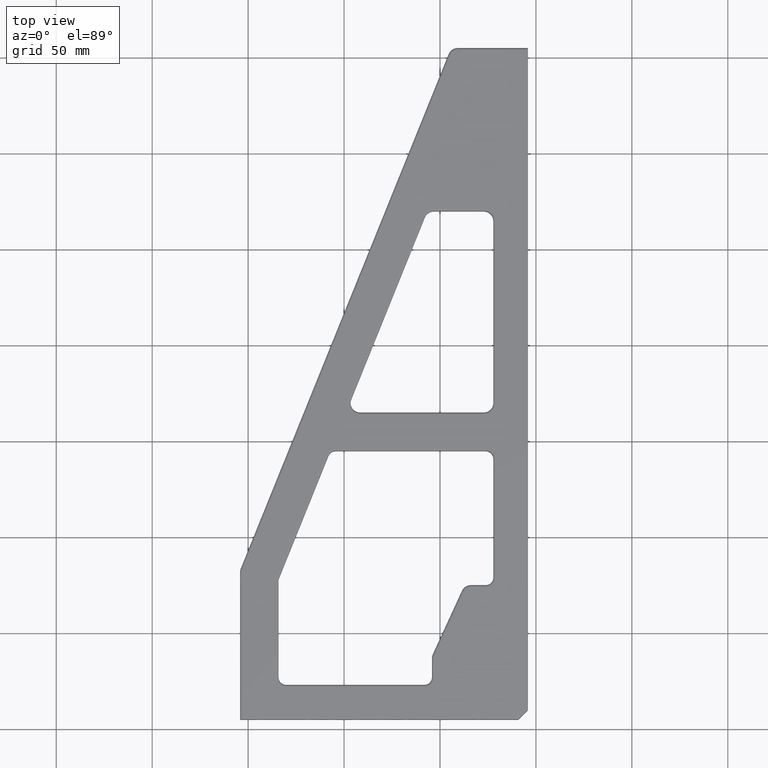
[diagram: clean part render]
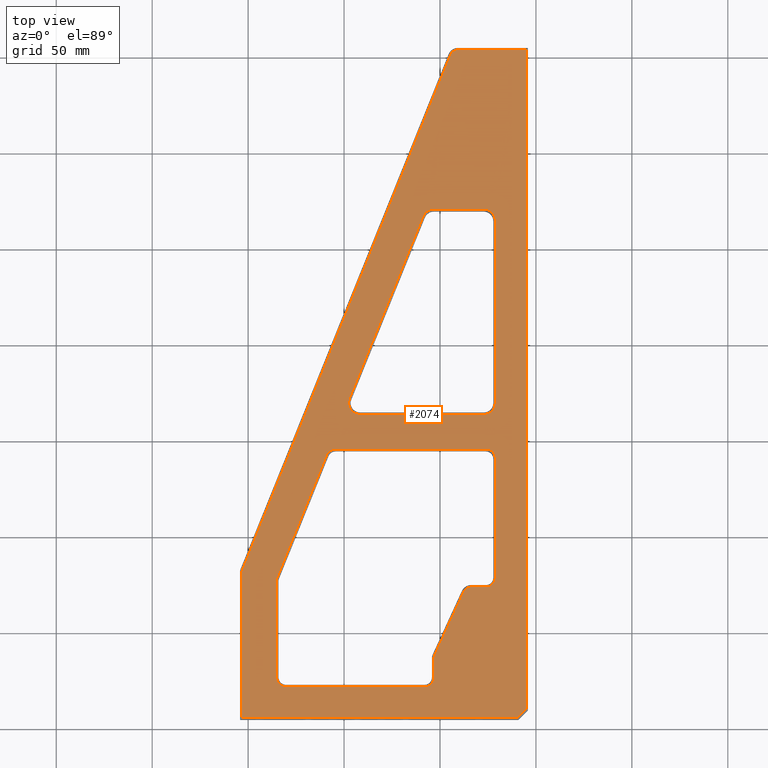
[diagram: same view with one face highlighted and labeled with its STEP entity id]
A machine part, top view. The second image highlights one B-rep face of the part: STEP entity #2074.
In plain terms, the highlighted planar face has unit normal (0, 0, 1).
Its self-contained STEP definition (entity closure, byte-faithful):
#43 = CARTESIAN_POINT ( 'NONE',  ( 149.0000000000000000, 349.0000000000000000, 18.00000000000001400 ) ) ;
#44 = VECTOR ( 'NONE', #501, 1000.000000000000000 ) ;
#126 = EDGE_LOOP ( 'NONE', ( #5158, #3709, #1518, #5282, #1788, #5271, #2563, #5388, #1693, #2848, #5164, #4186, #2312, #811, #1691, #3059 ) ) ;
#150 = VERTEX_POINT ( 'NONE', #197 ) ;
#156 = VERTEX_POINT ( 'NONE', #1038 ) ;
#197 = CARTESIAN_POINT ( 'NONE',  ( 19.36408072716605800, 74.09551173052867100, 18.00000000000001400 ) ) ;
#230 = VERTEX_POINT ( 'NONE', #3561 ) ;
#232 = DIRECTION ( 'NONE',  ( 1.000000000000000000, 0.0000000000000000000, 0.0000000000000000000 ) ) ;
#241 = DIRECTION ( 'NONE',  ( -1.000000000000000000, 3.611669139550354700E-016, -0.0000000000000000000 ) ) ;
#257 = EDGE_CURVE ( 'NONE', #2310, #3793, #4108, .T. ) ;
#278 = DIRECTION ( 'NONE',  ( -1.000000000000000000, -8.673617379884035500E-017, -0.0000000000000000000 ) ) ;
#288 = CIRCLE ( 'NONE', #2963, 4.000000000000003600 ) ;
#356 = CARTESIAN_POINT ( 'NONE',  ( 18.99999999999999300, 22.00000000000000700, 18.00000000000001400 ) ) ;
#468 = VERTEX_POINT ( 'NONE', #1799 ) ;
#472 = EDGE_CURVE ( 'NONE', #2379, #2310, #4510, .T. ) ;
#487 = CARTESIAN_POINT ( 'NONE',  ( 0.0000000000000000000, 0.0000000000000000000, 18.00000000000001400 ) ) ;
#501 = DIRECTION ( 'NONE',  ( 1.261617073437678500E-016, 1.000000000000000000, -0.0000000000000000000 ) ) ;
#556 = LINE ( 'NONE', #621, #2863 ) ;
#570 = CARTESIAN_POINT ( 'NONE',  ( 100.9455779445615500, 266.0000000000000000, 18.00000000000001400 ) ) ;
#584 = CARTESIAN_POINT ( 'NONE',  ( 95.38247481716084100, 262.2476395604954900, 18.00000000000001400 ) ) ;
#592 = CARTESIAN_POINT ( 'NONE',  ( 62.56308649022202000, 165.0000000000000000, 18.00000000000001400 ) ) ;
#605 = CIRCLE ( 'NONE', #2345, 4.999999999999997300 ) ;
#613 = LINE ( 'NONE', #4608, #4957 ) ;
#621 = CARTESIAN_POINT ( 'NONE',  ( 128.0000000000000000, 141.0000000000000000, 18.00000000000001400 ) ) ;
#635 = DIRECTION ( 'NONE',  ( -0.0000000000000000000, 0.0000000000000000000, 1.000000000000000000 ) ) ;
#645 = DIRECTION ( 'NONE',  ( 0.0000000000000000000, -0.0000000000000000000, -1.000000000000000000 ) ) ;
#651 = CARTESIAN_POINT ( 'NONE',  ( 23.99999999999999300, 22.00000000000000700, 18.00000000000001400 ) ) ;
#666 = CARTESIAN_POINT ( 'NONE',  ( 133.0000000000000000, 74.00000000000001400, 18.00000000000001400 ) ) ;
#759 = DIRECTION ( 'NONE',  ( -0.0000000000000000000, 0.0000000000000000000, 1.000000000000000000 ) ) ;
#790 = EDGE_CURVE ( 'NONE', #468, #1547, #5467, .T. ) ;
#811 = ORIENTED_EDGE ( 'NONE', *, *, #3150, .T. ) ;
#827 = CARTESIAN_POINT ( 'NONE',  ( 149.0000000000000000, 350.0000000000000000, 18.00000000000001400 ) ) ;
#835 = AXIS2_PLACEMENT_3D ( 'NONE', #1302, #4338, #1746 ) ;
#847 = CARTESIAN_POINT ( 'NONE',  ( 127.0000000000000000, 260.0000000000000000, 18.00000000000001400 ) ) ;
#919 = VECTOR ( 'NONE', #1103, 1000.000000000000000 ) ;
#940 = CIRCLE ( 'NONE', #3570, 5.000000000000004400 ) ;
#941 = ORIENTED_EDGE ( 'NONE', *, *, #1252, .T. ) ;
#946 = ORIENTED_EDGE ( 'NONE', *, *, #3347, .T. ) ;
#1020 = CARTESIAN_POINT ( 'NONE',  ( 23.99999999999999300, 17.00000000000000000, 18.00000000000001400 ) ) ;
#1025 = DIRECTION ( 'NONE',  ( 1.000000000000000000, 0.0000000000000000000, 0.0000000000000000000 ) ) ;
#1038 = CARTESIAN_POINT ( 'NONE',  ( 18.99999999999999600, 72.22247876344911800, 18.00000000000001400 ) ) ;
#1083 = DIRECTION ( 'NONE',  ( 0.0000000000000000000, -0.0000000000000000000, -1.000000000000000000 ) ) ;
#1096 = DIRECTION ( 'NONE',  ( 1.000000000000000000, 0.0000000000000000000, 0.0000000000000000000 ) ) ;
#1103 = DIRECTION ( 'NONE',  ( 2.643388153869419300E-016, -1.000000000000000000, 0.0000000000000000000 ) ) ;
#1109 = CARTESIAN_POINT ( 'NONE',  ( 1.000000000000000000, 0.0000000000000000000, 18.00000000000001400 ) ) ;
#1132 = CARTESIAN_POINT ( 'NONE',  ( 133.0000000000000300, 164.9999999999999700, 18.00000000000001400 ) ) ;
#1153 = DIRECTION ( 'NONE',  ( -0.4175001715507113400, -0.9086768439633127200, -0.0000000000000000000 ) ) ;
#1182 = AXIS2_PLACEMENT_3D ( 'NONE', #651, #3683, #1096 ) ;
#1183 = DIRECTION ( 'NONE',  ( 0.0000000000000000000, -0.0000000000000000000, -1.000000000000000000 ) ) ;
#1209 = VERTEX_POINT ( 'NONE', #5462 ) ;
#1252 = EDGE_CURVE ( 'NONE', #3439, #230, #3670, .T. ) ;
#1268 = CARTESIAN_POINT ( 'NONE',  ( 127.0000000000000000, 266.0000000000000000, 18.00000000000001400 ) ) ;
#1277 = DIRECTION ( 'NONE',  ( 1.000000000000000000, 0.0000000000000000000, 0.0000000000000000000 ) ) ;
#1286 = ORIENTED_EDGE ( 'NONE', *, *, #3197, .T. ) ;
#1302 = CARTESIAN_POINT ( 'NONE',  ( 127.0000000000000300, 164.9999999999999700, 18.00000000000001400 ) ) ;
#1339 = VECTOR ( 'NONE', #3175, 1000.000000000000000 ) ;
#1353 = EDGE_CURVE ( 'NONE', #3035, #2903, #4425, .T. ) ;
#1367 = VERTEX_POINT ( 'NONE', #43 ) ;
#1399 = DIRECTION ( 'NONE',  ( 0.3746065934159091800, 0.9271838545667885300, -0.0000000000000000000 ) ) ;
#1418 = VERTEX_POINT ( 'NONE', #3496 ) ;
#1459 = CARTESIAN_POINT ( 'NONE',  ( 56.99998336282128300, 167.2476395604954600, 18.00000000000001400 ) ) ;
#1461 = EDGE_CURVE ( 'NONE', #5114, #2133, #556, .T. ) ;
#1485 = AXIS2_PLACEMENT_3D ( 'NONE', #4579, #1984, #5021 ) ;
#1518 = ORIENTED_EDGE ( 'NONE', *, *, #2493, .T. ) ;
#1529 = EDGE_CURVE ( 'NONE', #4699, #3302, #4769, .T. ) ;
#1540 = DIRECTION ( 'NONE',  ( 1.000000000000000000, -0.0000000000000000000, 0.0000000000000000000 ) ) ;
#1547 = VERTEX_POINT ( 'NONE', #4125 ) ;
#1552 = CARTESIAN_POINT ( 'NONE',  ( 1.291264581732830500, 78.26697095218024500, 18.00000000000001400 ) ) ;
#1573 = EDGE_CURVE ( 'NONE', #1418, #3777, #4073, .T. ) ;
#1582 = DIRECTION ( 'NONE',  ( 0.7071067811865474600, 0.7071067811865474600, -0.0000000000000000000 ) ) ;
#1595 = DIRECTION ( 'NONE',  ( -0.0000000000000000000, 0.0000000000000000000, 1.000000000000000000 ) ) ;
#1596 = EDGE_CURVE ( 'NONE', #4651, #2273, #613, .T. ) ;
#1598 = LINE ( 'NONE', #827, #3891 ) ;
#1628 = EDGE_CURVE ( 'NONE', #1547, #1858, #2524, .T. ) ;
#1636 = LINE ( 'NONE', #4772, #2760 ) ;
#1682 = DIRECTION ( 'NONE',  ( 0.0000000000000000000, 1.000000000000000000, -0.0000000000000000000 ) ) ;
#1691 = ORIENTED_EDGE ( 'NONE', *, *, #3187, .T. ) ;
#1693 = ORIENTED_EDGE ( 'NONE', *, *, #4436, .T. ) ;
#1720 = EDGE_CURVE ( 'NONE', #3793, #1209, #1977, .T. ) ;
#1737 = VECTOR ( 'NONE', #5532, 1000.000000000000000 ) ;
#1740 = AXIS2_PLACEMENT_3D ( 'NONE', #487, #4823, #2220 ) ;
#1746 = DIRECTION ( 'NONE',  ( 1.000000000000000000, 0.0000000000000000000, 0.0000000000000000000 ) ) ;
#1754 = LINE ( 'NONE', #4416, #1877 ) ;
#1788 = ORIENTED_EDGE ( 'NONE', *, *, #1573, .T. ) ;
#1796 = AXIS2_PLACEMENT_3D ( 'NONE', #4179, #1595, #4620 ) ;
#1799 = CARTESIAN_POINT ( 'NONE',  ( 127.0000000000000300, 158.9999999999999700, 18.00000000000001400 ) ) ;
#1858 = VERTEX_POINT ( 'NONE', #1459 ) ;
#1877 = VECTOR ( 'NONE', #1399, 1000.000000000000000 ) ;
#1920 = DIRECTION ( 'NONE',  ( 0.0000000000000000000, -0.0000000000000000000, -1.000000000000000000 ) ) ;
#1977 = LINE ( 'NONE', #1109, #4550 ) ;
#1984 = DIRECTION ( 'NONE',  ( 0.0000000000000000000, -0.0000000000000000000, -1.000000000000000000 ) ) ;
#2001 = EDGE_CURVE ( 'NONE', #2691, #3035, #940, .T. ) ;
#2011 = CARTESIAN_POINT ( 'NONE',  ( 113.3725425842121100, 345.0000000000000000, 18.00000000000001400 ) ) ;
#2044 = EDGE_CURVE ( 'NONE', #2165, #4699, #4004, .T. ) ;
#2074 = ADVANCED_FACE ( 'NONE', ( #5029, #4872, #3727 ), #3961, .T. ) ;
#2133 = VERTEX_POINT ( 'NONE', #3144 ) ;
#2165 = VERTEX_POINT ( 'NONE', #3162 ) ;
#2205 = DIRECTION ( 'NONE',  ( -0.3746065934159093500, -0.9271838545667884200, 0.0000000000000000000 ) ) ;
#2220 = DIRECTION ( 'NONE',  ( 1.000000000000000000, 0.0000000000000000000, 0.0000000000000000000 ) ) ;
#2273 = VERTEX_POINT ( 'NONE', #4088 ) ;
#2310 = VERTEX_POINT ( 'NONE', #1552 ) ;
#2312 = ORIENTED_EDGE ( 'NONE', *, *, #1461, .T. ) ;
#2345 = AXIS2_PLACEMENT_3D ( 'NONE', #3676, #1083, #4119 ) ;
#2349 = CARTESIAN_POINT ( 'NONE',  ( 101.3652926241467600, 33.57631064414266600, 18.00000000000001400 ) ) ;
#2379 = VERTEX_POINT ( 'NONE', #3305 ) ;
#2447 = DIRECTION ( 'NONE',  ( 1.000000000000000000, 0.0000000000000000000, 0.0000000000000000000 ) ) ;
#2493 = EDGE_CURVE ( 'NONE', #2866, #3110, #4882, .T. ) ;
#2509 = CARTESIAN_POINT ( 'NONE',  ( 127.0000000000000000, 266.0000000000000000, 18.00000000000001400 ) ) ;
#2524 = CIRCLE ( 'NONE', #4960, 6.000000000000005300 ) ;
#2533 = EDGE_CURVE ( 'NONE', #3110, #1418, #288, .T. ) ;
#2559 = AXIS2_PLACEMENT_3D ( 'NONE', #3211, #635, #3654 ) ;
#2562 = EDGE_LOOP ( 'NONE', ( #2819, #4602, #2944, #5279, #2707, #3865, #2888, #4358 ) ) ;
#2563 = ORIENTED_EDGE ( 'NONE', *, *, #2044, .T. ) ;
#2595 = CARTESIAN_POINT ( 'NONE',  ( 116.5705015623906300, 66.67000068620285400, 18.00000000000001400 ) ) ;
#2607 = CARTESIAN_POINT ( 'NONE',  ( 1.291264581732856500, 78.26697095218031600, 18.00000000000001400 ) ) ;
#2613 = CARTESIAN_POINT ( 'NONE',  ( 113.3725425842121100, 349.0000000000000000, 18.00000000000001400 ) ) ;
#2614 = DIRECTION ( 'NONE',  ( -1.000000000000000000, 0.0000000000000000000, -0.0000000000000000000 ) ) ;
#2659 = CARTESIAN_POINT ( 'NONE',  ( 18.99999999999999600, 72.22247876344910400, 18.00000000000001400 ) ) ;
#2684 = VECTOR ( 'NONE', #1540, 1000.000000000000000 ) ;
#2691 = VERTEX_POINT ( 'NONE', #5614 ) ;
#2707 = ORIENTED_EDGE ( 'NONE', *, *, #1720, .T. ) ;
#2717 = EDGE_LOOP ( 'NONE', ( #1286, #5381, #3770, #3989, #3345, #3711, #946, #941 ) ) ;
#2734 = AXIS2_PLACEMENT_3D ( 'NONE', #847, #3877, #1277 ) ;
#2760 = VECTOR ( 'NONE', #3914, 1000.000000000000000 ) ;
#2816 = DIRECTION ( 'NONE',  ( 0.0000000000000000000, -0.0000000000000000000, -1.000000000000000000 ) ) ;
#2819 = ORIENTED_EDGE ( 'NONE', *, *, #3040, .T. ) ;
#2848 = ORIENTED_EDGE ( 'NONE', *, *, #4744, .T. ) ;
#2863 = VECTOR ( 'NONE', #3640, 1000.000000000000000 ) ;
#2866 = VERTEX_POINT ( 'NONE', #2595 ) ;
#2888 = ORIENTED_EDGE ( 'NONE', *, *, #1596, .T. ) ;
#2903 = VERTEX_POINT ( 'NONE', #4375 ) ;
#2919 = VECTOR ( 'NONE', #5025, 1000.000000000000000 ) ;
#2944 = ORIENTED_EDGE ( 'NONE', *, *, #472, .T. ) ;
#2959 = EDGE_CURVE ( 'NONE', #150, #3091, #1754, .T. ) ;
#2963 = AXIS2_PLACEMENT_3D ( 'NONE', #3341, #759, #3778 ) ;
#3035 = VERTEX_POINT ( 'NONE', #4909 ) ;
#3040 = EDGE_CURVE ( 'NONE', #1367, #5109, #3626, .T. ) ;
#3059 = ORIENTED_EDGE ( 'NONE', *, *, #2001, .T. ) ;
#3082 = EDGE_CURVE ( 'NONE', #4130, #4573, #3775, .T. ) ;
#3091 = VERTEX_POINT ( 'NONE', #4079 ) ;
#3110 = VERTEX_POINT ( 'NONE', #2349 ) ;
#3144 = CARTESIAN_POINT ( 'NONE',  ( 128.0000000000000000, 141.0000000000000000, 18.00000000000001400 ) ) ;
#3150 = EDGE_CURVE ( 'NONE', #2133, #3169, #3360, .T. ) ;
#3162 = CARTESIAN_POINT ( 'NONE',  ( 95.99999999999998600, 17.00000000000001400, 18.00000000000001400 ) ) ;
#3169 = VERTEX_POINT ( 'NONE', #5425 ) ;
#3175 = DIRECTION ( 'NONE',  ( -1.000000000000000000, 0.0000000000000000000, 0.0000000000000000000 ) ) ;
#3187 = EDGE_CURVE ( 'NONE', #3169, #2691, #4265, .T. ) ;
#3197 = EDGE_CURVE ( 'NONE', #230, #5343, #4389, .T. ) ;
#3211 = CARTESIAN_POINT ( 'NONE',  ( 4.999999999999985800, 76.76854457851666800, 18.00000000000001400 ) ) ;
#3227 = CARTESIAN_POINT ( 'NONE',  ( 128.0000000000000000, 136.0000000000000000, 18.00000000000001400 ) ) ;
#3254 = EDGE_CURVE ( 'NONE', #2903, #2866, #4114, .T. ) ;
#3255 = DIRECTION ( 'NONE',  ( -0.0000000000000000000, -1.000000000000000000, 0.0000000000000000000 ) ) ;
#3273 = EDGE_CURVE ( 'NONE', #3777, #2165, #3560, .T. ) ;
#3302 = VERTEX_POINT ( 'NONE', #356 ) ;
#3305 = CARTESIAN_POINT ( 'NONE',  ( 109.6638071659449500, 346.4984263736635600, 18.00000000000001400 ) ) ;
#3341 = CARTESIAN_POINT ( 'NONE',  ( 105.0000000000000100, 31.90630995793981800, 18.00000000000001400 ) ) ;
#3345 = ORIENTED_EDGE ( 'NONE', *, *, #5553, .T. ) ;
#3347 = EDGE_CURVE ( 'NONE', #4573, #3439, #5062, .T. ) ;
#3351 = VECTOR ( 'NONE', #2205, 1000.000000000000100 ) ;
#3360 = CIRCLE ( 'NONE', #5121, 5.000000000000004400 ) ;
#3439 = VERTEX_POINT ( 'NONE', #1268 ) ;
#3481 = LINE ( 'NONE', #2659, #44 ) ;
#3496 = CARTESIAN_POINT ( 'NONE',  ( 101.0000000000000000, 31.90630995793983300, 18.00000000000001400 ) ) ;
#3560 = CIRCLE ( 'NONE', #4115, 5.000000000000004400 ) ;
#3561 = CARTESIAN_POINT ( 'NONE',  ( 133.0000000000000000, 260.0000000000000000, 18.00000000000001400 ) ) ;
#3570 = AXIS2_PLACEMENT_3D ( 'NONE', #5416, #2816, #232 ) ;
#3576 = AXIS2_PLACEMENT_3D ( 'NONE', #2011, #5053, #2447 ) ;
#3617 = DIRECTION ( 'NONE',  ( 0.0000000000000000000, -0.0000000000000000000, -1.000000000000000000 ) ) ;
#3626 = LINE ( 'NONE', #5352, #1339 ) ;
#3640 = DIRECTION ( 'NONE',  ( 1.000000000000000000, -0.0000000000000000000, -0.0000000000000000000 ) ) ;
#3654 = DIRECTION ( 'NONE',  ( 1.000000000000000000, 0.0000000000000000000, 0.0000000000000000000 ) ) ;
#3670 = CIRCLE ( 'NONE', #2734, 6.000000000000005300 ) ;
#3673 = DIRECTION ( 'NONE',  ( 1.000000000000000000, 0.0000000000000000000, 0.0000000000000000000 ) ) ;
#3676 = CARTESIAN_POINT ( 'NONE',  ( 49.76779119832499300, 136.0000000000000000, 18.00000000000001400 ) ) ;
#3683 = DIRECTION ( 'NONE',  ( 0.0000000000000000000, -0.0000000000000000000, -1.000000000000000000 ) ) ;
#3694 = CARTESIAN_POINT ( 'NONE',  ( 62.56308649022202000, 159.0000000000000000, 18.00000000000001400 ) ) ;
#3700 = CARTESIAN_POINT ( 'NONE',  ( 100.9999999999999900, 22.00000000000000700, 18.00000000000001400 ) ) ;
#3709 = ORIENTED_EDGE ( 'NONE', *, *, #3254, .T. ) ;
#3711 = ORIENTED_EDGE ( 'NONE', *, *, #3082, .T. ) ;
#3727 = FACE_BOUND ( 'NONE', #2717, .T. ) ;
#3760 = EDGE_CURVE ( 'NONE', #2273, #1367, #1598, .T. ) ;
#3770 = ORIENTED_EDGE ( 'NONE', *, *, #790, .T. ) ;
#3771 = CARTESIAN_POINT ( 'NONE',  ( 95.99999999999998600, 22.00000000000000700, 18.00000000000001400 ) ) ;
#3775 = CIRCLE ( 'NONE', #4511, 6.000000000000005300 ) ;
#3777 = VERTEX_POINT ( 'NONE', #4315 ) ;
#3778 = DIRECTION ( 'NONE',  ( 1.000000000000000000, 0.0000000000000000000, 0.0000000000000000000 ) ) ;
#3793 = VERTEX_POINT ( 'NONE', #5201 ) ;
#3865 = ORIENTED_EDGE ( 'NONE', *, *, #4204, .T. ) ;
#3877 = DIRECTION ( 'NONE',  ( 0.0000000000000000000, -0.0000000000000000000, -1.000000000000000000 ) ) ;
#3891 = VECTOR ( 'NONE', #1682, 1000.000000000000000 ) ;
#3914 = DIRECTION ( 'NONE',  ( 0.3746065934159091300, 0.9271838545667885300, -0.0000000000000000000 ) ) ;
#3930 = CARTESIAN_POINT ( 'NONE',  ( 49.76779119832499300, 141.0000000000000000, 18.00000000000001400 ) ) ;
#3931 = CARTESIAN_POINT ( 'NONE',  ( 120.2052089382438900, 69.00000000000000000, 18.00000000000001400 ) ) ;
#3961 = PLANE ( 'NONE',  #1740 ) ;
#3980 = LINE ( 'NONE', #4578, #2684 ) ;
#3989 = ORIENTED_EDGE ( 'NONE', *, *, #1628, .T. ) ;
#4004 = LINE ( 'NONE', #5034, #5163 ) ;
#4073 = LINE ( 'NONE', #3700, #2919 ) ;
#4079 = CARTESIAN_POINT ( 'NONE',  ( 45.13187192549104800, 137.8730329670795200, 18.00000000000001400 ) ) ;
#4088 = CARTESIAN_POINT ( 'NONE',  ( 149.0000000000000000, 5.414213562373094000, 18.00000000000001400 ) ) ;
#4108 = CIRCLE ( 'NONE', #2559, 4.000000000000000900 ) ;
#4114 = CIRCLE ( 'NONE', #1796, 4.000000000000003600 ) ;
#4115 = AXIS2_PLACEMENT_3D ( 'NONE', #3771, #1183, #4224 ) ;
#4119 = DIRECTION ( 'NONE',  ( 1.000000000000000000, 0.0000000000000000000, 0.0000000000000000000 ) ) ;
#4125 = CARTESIAN_POINT ( 'NONE',  ( 62.56308649022202000, 159.0000000000000000, 18.00000000000001400 ) ) ;
#4130 = VERTEX_POINT ( 'NONE', #584 ) ;
#4141 = CARTESIAN_POINT ( 'NONE',  ( 133.0000000000000300, 164.9999999999999700, 18.00000000000001400 ) ) ;
#4150 = DIRECTION ( 'NONE',  ( 1.757250961937032100E-016, -1.000000000000000000, 0.0000000000000000000 ) ) ;
#4179 = CARTESIAN_POINT ( 'NONE',  ( 120.2052089382438900, 65.00000000000000000, 18.00000000000001400 ) ) ;
#4186 = ORIENTED_EDGE ( 'NONE', *, *, #4723, .T. ) ;
#4187 = CARTESIAN_POINT ( 'NONE',  ( 101.3652926241467600, 33.57631064414266600, 18.00000000000001400 ) ) ;
#4204 = EDGE_CURVE ( 'NONE', #1209, #4651, #3980, .T. ) ;
#4224 = DIRECTION ( 'NONE',  ( 1.000000000000000000, 0.0000000000000000000, 0.0000000000000000000 ) ) ;
#4265 = LINE ( 'NONE', #666, #5402 ) ;
#4315 = CARTESIAN_POINT ( 'NONE',  ( 100.9999999999999900, 22.00000000000000700, 18.00000000000001400 ) ) ;
#4338 = DIRECTION ( 'NONE',  ( 0.0000000000000000000, -0.0000000000000000000, -1.000000000000000000 ) ) ;
#4358 = ORIENTED_EDGE ( 'NONE', *, *, #3760, .T. ) ;
#4375 = CARTESIAN_POINT ( 'NONE',  ( 120.2052089382438900, 69.00000000000000000, 18.00000000000001400 ) ) ;
#4389 = LINE ( 'NONE', #4141, #919 ) ;
#4416 = CARTESIAN_POINT ( 'NONE',  ( 45.13187192549104800, 137.8730329670795200, 18.00000000000001400 ) ) ;
#4425 = LINE ( 'NONE', #3931, #5445 ) ;
#4436 = EDGE_CURVE ( 'NONE', #3302, #156, #3481, .T. ) ;
#4440 = VECTOR ( 'NONE', #241, 1000.000000000000000 ) ;
#4510 = LINE ( 'NONE', #2607, #3351 ) ;
#4511 = AXIS2_PLACEMENT_3D ( 'NONE', #4512, #1920, #4951 ) ;
#4512 = CARTESIAN_POINT ( 'NONE',  ( 100.9455779445615500, 260.0000000000000000, 18.00000000000001400 ) ) ;
#4550 = VECTOR ( 'NONE', #4150, 1000.000000000000000 ) ;
#4573 = VERTEX_POINT ( 'NONE', #570 ) ;
#4578 = CARTESIAN_POINT ( 'NONE',  ( 145.0000000000000000, 1.000000000000000900, 18.00000000000001400 ) ) ;
#4579 = CARTESIAN_POINT ( 'NONE',  ( 23.99999999999999600, 72.22247876344911800, 18.00000000000001400 ) ) ;
#4602 = ORIENTED_EDGE ( 'NONE', *, *, #5341, .T. ) ;
#4608 = CARTESIAN_POINT ( 'NONE',  ( 71.79289321881343300, -71.79289321881343300, 18.00000000000001400 ) ) ;
#4620 = DIRECTION ( 'NONE',  ( 1.000000000000000000, 0.0000000000000000000, 0.0000000000000000000 ) ) ;
#4651 = VERTEX_POINT ( 'NONE', #5323 ) ;
#4680 = CIRCLE ( 'NONE', #3576, 4.000000000000003600 ) ;
#4699 = VERTEX_POINT ( 'NONE', #1020 ) ;
#4723 = EDGE_CURVE ( 'NONE', #3091, #5114, #605, .T. ) ;
#4744 = EDGE_CURVE ( 'NONE', #156, #150, #5234, .T. ) ;
#4769 = CIRCLE ( 'NONE', #1182, 5.000000000000000900 ) ;
#4772 = CARTESIAN_POINT ( 'NONE',  ( 95.38247481716084100, 262.2476395604954900, 18.00000000000001400 ) ) ;
#4823 = DIRECTION ( 'NONE',  ( -0.0000000000000000000, 0.0000000000000000000, 1.000000000000000000 ) ) ;
#4872 = FACE_BOUND ( 'NONE', #126, .T. ) ;
#4882 = LINE ( 'NONE', #4187, #5169 ) ;
#4909 = CARTESIAN_POINT ( 'NONE',  ( 128.0000000000000000, 69.00000000000000000, 18.00000000000001400 ) ) ;
#4951 = DIRECTION ( 'NONE',  ( 1.000000000000000000, 0.0000000000000000000, 0.0000000000000000000 ) ) ;
#4957 = VECTOR ( 'NONE', #1582, 1000.000000000000100 ) ;
#4960 = AXIS2_PLACEMENT_3D ( 'NONE', #592, #3617, #1025 ) ;
#5021 = DIRECTION ( 'NONE',  ( 1.000000000000000000, 2.775557561562891000E-015, 0.0000000000000000000 ) ) ;
#5025 = DIRECTION ( 'NONE',  ( -9.251858538542971800E-016, -1.000000000000000000, -0.0000000000000000000 ) ) ;
#5029 = FACE_OUTER_BOUND ( 'NONE', #2562, .T. ) ;
#5034 = CARTESIAN_POINT ( 'NONE',  ( 23.99999999999999300, 17.00000000000000000, 18.00000000000001400 ) ) ;
#5053 = DIRECTION ( 'NONE',  ( -0.0000000000000000000, 0.0000000000000000000, 1.000000000000000000 ) ) ;
#5062 = LINE ( 'NONE', #2509, #1737 ) ;
#5109 = VERTEX_POINT ( 'NONE', #2613 ) ;
#5114 = VERTEX_POINT ( 'NONE', #3930 ) ;
#5121 = AXIS2_PLACEMENT_3D ( 'NONE', #3227, #645, #3673 ) ;
#5158 = ORIENTED_EDGE ( 'NONE', *, *, #1353, .T. ) ;
#5163 = VECTOR ( 'NONE', #278, 1000.000000000000000 ) ;
#5164 = ORIENTED_EDGE ( 'NONE', *, *, #2959, .T. ) ;
#5169 = VECTOR ( 'NONE', #1153, 1000.000000000000000 ) ;
#5201 = CARTESIAN_POINT ( 'NONE',  ( 0.9999999999999865700, 76.76854457851666800, 18.00000000000001400 ) ) ;
#5234 = CIRCLE ( 'NONE', #1485, 5.000000000000000900 ) ;
#5271 = ORIENTED_EDGE ( 'NONE', *, *, #3273, .T. ) ;
#5279 = ORIENTED_EDGE ( 'NONE', *, *, #257, .T. ) ;
#5282 = ORIENTED_EDGE ( 'NONE', *, *, #2533, .T. ) ;
#5323 = CARTESIAN_POINT ( 'NONE',  ( 144.5857864376268900, 1.000000000000000900, 18.00000000000001400 ) ) ;
#5341 = EDGE_CURVE ( 'NONE', #5109, #2379, #4680, .T. ) ;
#5343 = VERTEX_POINT ( 'NONE', #1132 ) ;
#5352 = CARTESIAN_POINT ( 'NONE',  ( 113.3725425842121100, 349.0000000000000000, 18.00000000000001400 ) ) ;
#5381 = ORIENTED_EDGE ( 'NONE', *, *, #5531, .T. ) ;
#5388 = ORIENTED_EDGE ( 'NONE', *, *, #1529, .T. ) ;
#5402 = VECTOR ( 'NONE', #3255, 1000.000000000000000 ) ;
#5416 = CARTESIAN_POINT ( 'NONE',  ( 128.0000000000000000, 74.00000000000001400, 18.00000000000001400 ) ) ;
#5425 = CARTESIAN_POINT ( 'NONE',  ( 133.0000000000000000, 136.0000000000000000, 18.00000000000001400 ) ) ;
#5445 = VECTOR ( 'NONE', #2614, 1000.000000000000000 ) ;
#5462 = CARTESIAN_POINT ( 'NONE',  ( 1.000000000000000000, 1.000000000000000900, 18.00000000000001400 ) ) ;
#5467 = LINE ( 'NONE', #3694, #4440 ) ;
#5531 = EDGE_CURVE ( 'NONE', #5343, #468, #5618, .T. ) ;
#5532 = DIRECTION ( 'NONE',  ( 1.000000000000000000, -0.0000000000000000000, -0.0000000000000000000 ) ) ;
#5553 = EDGE_CURVE ( 'NONE', #1858, #4130, #1636, .T. ) ;
#5614 = CARTESIAN_POINT ( 'NONE',  ( 133.0000000000000000, 74.00000000000001400, 18.00000000000001400 ) ) ;
#5618 = CIRCLE ( 'NONE', #835, 6.000000000000005300 ) ;